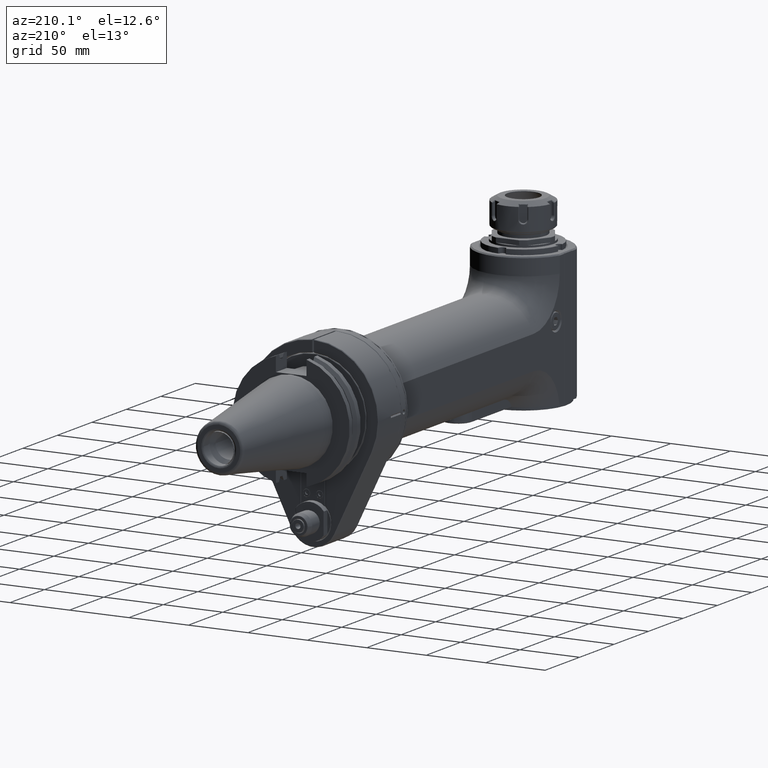
[diagram: clean part render]
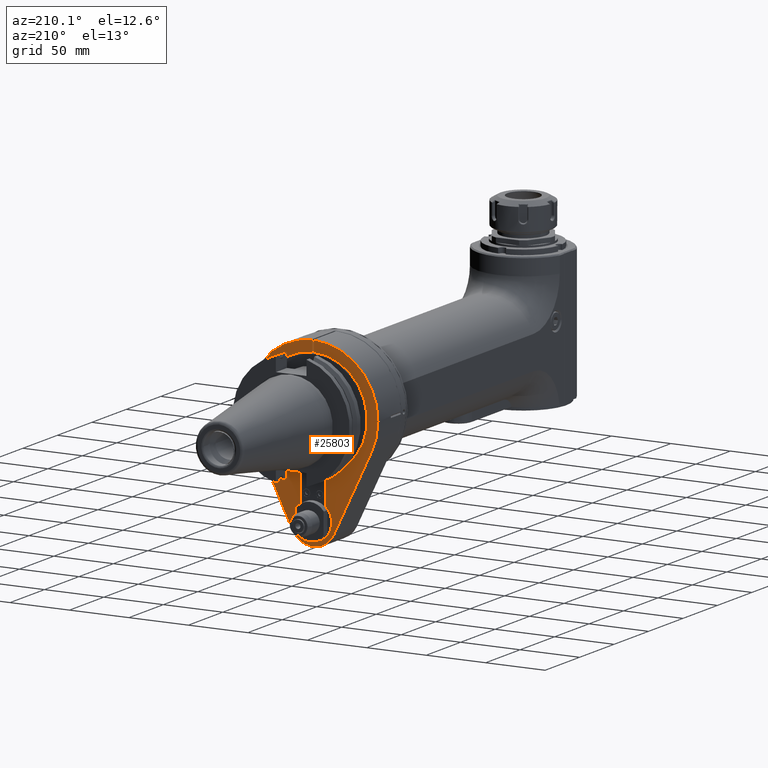
[diagram: same view with one face highlighted and labeled with its STEP entity id]
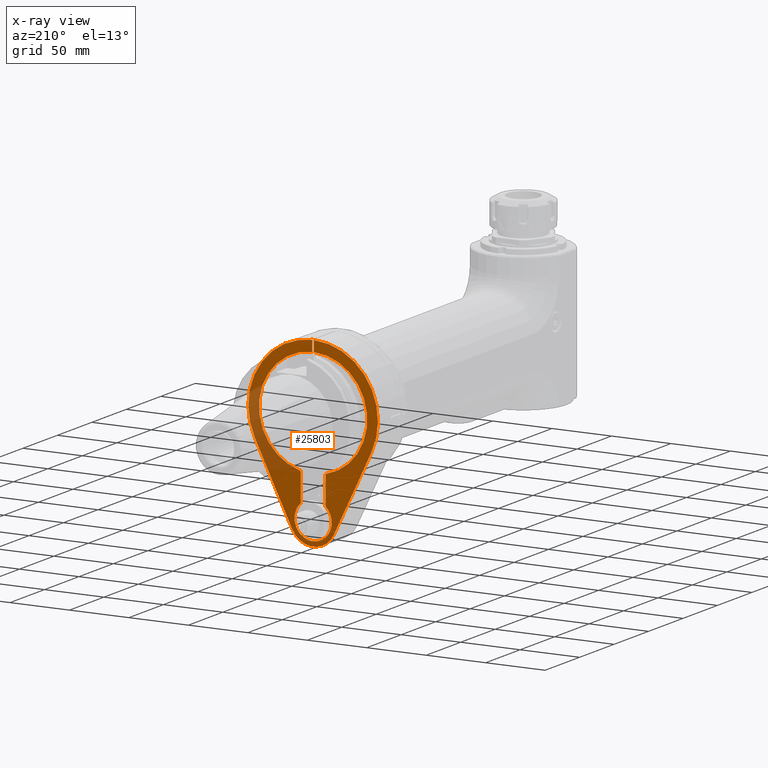
[diagram: x-ray of the same camera — body ghosted, the highlighted face saturated]
A machine part, auxiliary view. The second image highlights one B-rep face of the part: STEP entity #25803.
The next image is the same camera in x-ray: the body ghosted, the highlighted face saturated — about 17% of this face is hidden behind the body in this view.
In plain terms, the highlighted planar face has unit normal (0, 1, 0).
Its self-contained STEP definition (entity closure, byte-faithful):
#2783=LINE('',#48461,#5196);
#2792=LINE('',#48516,#5205);
#2797=LINE('',#48543,#5210);
#2800=LINE('',#48550,#5213);
#2801=LINE('',#48556,#5214);
#2802=LINE('',#48559,#5215);
#5196=VECTOR('',#33957,10.);
#5205=VECTOR('',#34004,10.);
#5210=VECTOR('',#34025,10.);
#5213=VECTOR('',#34032,10.);
#5214=VECTOR('',#34039,10.);
#5215=VECTOR('',#34042,10.);
#7140=FACE_OUTER_BOUND('',#8694,.T.);
#8694=EDGE_LOOP('',(#22043,#22044,#22045,#22046,#22047,#22048,#22049,#22050,
#22051,#22052,#22053,#22054));
#9809=CIRCLE('',#27981,45.4999446657);
#9822=CIRCLE('',#28006,54.4997279678);
#9823=CIRCLE('',#28007,19.4996670726964);
#9824=CIRCLE('',#28008,54.49972702429);
#9825=CIRCLE('',#28009,45.49996613716);
#9826=CIRCLE('',#28010,15.64997047922);
#12104=VERTEX_POINT('',#48440);
#12110=VERTEX_POINT('',#48457);
#12113=VERTEX_POINT('',#48467);
#12127=VERTEX_POINT('',#48511);
#12128=VERTEX_POINT('',#48515);
#12135=VERTEX_POINT('',#48541);
#12136=VERTEX_POINT('',#48542);
#12137=VERTEX_POINT('',#48547);
#12138=VERTEX_POINT('',#48549);
#12139=VERTEX_POINT('',#48553);
#12140=VERTEX_POINT('',#48555);
#12141=VERTEX_POINT('',#48557);
#15521=EDGE_CURVE('',#12104,#12110,#2783,.T.);
#15524=EDGE_CURVE('',#12104,#12113,#9809,.T.);
#15545=EDGE_CURVE('',#12127,#12128,#2792,.T.);
#15556=EDGE_CURVE('',#12135,#12136,#2797,.T.);
#15559=EDGE_CURVE('',#12137,#12110,#9822,.T.);
#15560=EDGE_CURVE('',#12138,#12137,#2800,.T.);
#15561=EDGE_CURVE('',#12136,#12138,#9823,.T.);
#15562=EDGE_CURVE('',#12128,#12135,#9824,.T.);
#15563=EDGE_CURVE('',#12139,#12127,#9825,.T.);
#15564=EDGE_CURVE('',#12140,#12139,#2801,.T.);
#15565=EDGE_CURVE('',#12141,#12140,#9826,.T.);
#15566=EDGE_CURVE('',#12113,#12141,#2802,.T.);
#22043=ORIENTED_EDGE('',*,*,#15524,.F.);
#22044=ORIENTED_EDGE('',*,*,#15521,.T.);
#22045=ORIENTED_EDGE('',*,*,#15559,.F.);
#22046=ORIENTED_EDGE('',*,*,#15560,.F.);
#22047=ORIENTED_EDGE('',*,*,#15561,.F.);
#22048=ORIENTED_EDGE('',*,*,#15556,.F.);
#22049=ORIENTED_EDGE('',*,*,#15562,.F.);
#22050=ORIENTED_EDGE('',*,*,#15545,.F.);
#22051=ORIENTED_EDGE('',*,*,#15563,.F.);
#22052=ORIENTED_EDGE('',*,*,#15564,.F.);
#22053=ORIENTED_EDGE('',*,*,#15565,.F.);
#22054=ORIENTED_EDGE('',*,*,#15566,.F.);
#24521=PLANE('',#28005);
#25803=ADVANCED_FACE('',(#7140),#24521,.T.);
#27981=AXIS2_PLACEMENT_3D('',#48468,#33964,#33965);
#28005=AXIS2_PLACEMENT_3D('',#48546,#34028,#34029);
#28006=AXIS2_PLACEMENT_3D('',#48548,#34030,#34031);
#28007=AXIS2_PLACEMENT_3D('',#48551,#34033,#34034);
#28008=AXIS2_PLACEMENT_3D('',#48552,#34035,#34036);
#28009=AXIS2_PLACEMENT_3D('',#48554,#34037,#34038);
#28010=AXIS2_PLACEMENT_3D('',#48558,#34040,#34041);
#33957=DIRECTION('',(0.,0.,1.));
#33964=DIRECTION('center_axis',(0.,1.,0.));
#33965=DIRECTION('ref_axis',(0.0164835280173405,0.,0.999864137422731));
#34004=DIRECTION('',(0.,0.,1.));
#34025=DIRECTION('',(0.43749999999998,0.,-0.899218410621145));
#34028=DIRECTION('center_axis',(0.,1.,0.));
#34029=DIRECTION('ref_axis',(1.,0.,0.));
#34030=DIRECTION('center_axis',(0.,-1.,0.));
#34031=DIRECTION('ref_axis',(0.899218410123311,0.,-0.437500001023205));
#34032=DIRECTION('',(0.43749999999998,0.,0.899218410621145));
#34033=DIRECTION('center_axis',(0.,-1.,0.));
#34034=DIRECTION('ref_axis',(0.,0.,1.));
#34035=DIRECTION('center_axis',(0.,-1.,0.));
#34036=DIRECTION('ref_axis',(-0.0137615308378099,0.,0.99990530565099));
#34037=DIRECTION('center_axis',(0.,1.,0.));
#34038=DIRECTION('ref_axis',(-0.230769352444596,0.,-0.973008481963185));
#34039=DIRECTION('',(0.,0.,1.));
#34040=DIRECTION('center_axis',(0.,1.,0.));
#34041=DIRECTION('ref_axis',(-0.670930538431927,0.,-0.74152020377023));
#34042=DIRECTION('',(0.,0.,-1.));
#48440=CARTESIAN_POINT('',(0.750000000027361,32.999999999515,45.4937629183949));
#48457=CARTESIAN_POINT('',(0.749999999976473,32.9999999994991,54.4945671484432));
#48461=CARTESIAN_POINT('',(0.75,33.,20.));
#48467=CARTESIAN_POINT('',(10.4999999995187,32.9999999998289,-44.2718303729929));
#48468=CARTESIAN_POINT('Origin',(5.764278043854E-13,33.,2.380318264796E-13));
#48511=CARTESIAN_POINT('',(-0.750000000018149,32.9999999996772,45.4937843931664));
#48515=CARTESIAN_POINT('',(-0.749999999976411,32.9999999994983,54.4945662048469));
#48516=CARTESIAN_POINT('',(-0.75,33.,31.847));
#48541=CARTESIAN_POINT('',(-49.0072803052741,33.0000002228673,-23.8436901632973));
#48542=CARTESIAN_POINT('',(-17.5349551279189,32.999998705085,-88.530471183187));
#48543=CARTESIAN_POINT('',(-41.1392422859193,33.,-40.0156249999998));
#48546=CARTESIAN_POINT('Origin',(0.,33.,0.));
#48547=CARTESIAN_POINT('',(49.007280721413,33.0000002220992,-23.8436903891079));
#48548=CARTESIAN_POINT('Origin',(3.099742784753E-13,33.,8.109069071862E-13));
#48549=CARTESIAN_POINT('',(17.5349710274581,33.0000132101883,-88.5304337147269));
#48550=CARTESIAN_POINT('',(41.1392422859193,33.,-40.0156249999998));
#48551=CARTESIAN_POINT('Origin',(-4.174437572591E-14,33.,-80.));
#48552=CARTESIAN_POINT('Origin',(-8.206768498029E-13,33.,2.84217194304E-14));
#48553=CARTESIAN_POINT('',(-10.500000000249,33.0000000002012,-44.2718524406441));
#48554=CARTESIAN_POINT('Origin',(-3.232969347708E-13,33.,-6.461497003318E-14));
#48555=CARTESIAN_POINT('',(-10.4999999995588,32.9999999999982,-68.3951916851949));
#48556=CARTESIAN_POINT('',(-10.5,33.,-28.12350667748));
#48557=CARTESIAN_POINT('',(10.5000000040409,33.0000000027957,-68.395191686819));
#48558=CARTESIAN_POINT('Origin',(-2.124966769133E-13,33.,-80.));
#48559=CARTESIAN_POINT('',(10.5,33.,-28.12350667748));